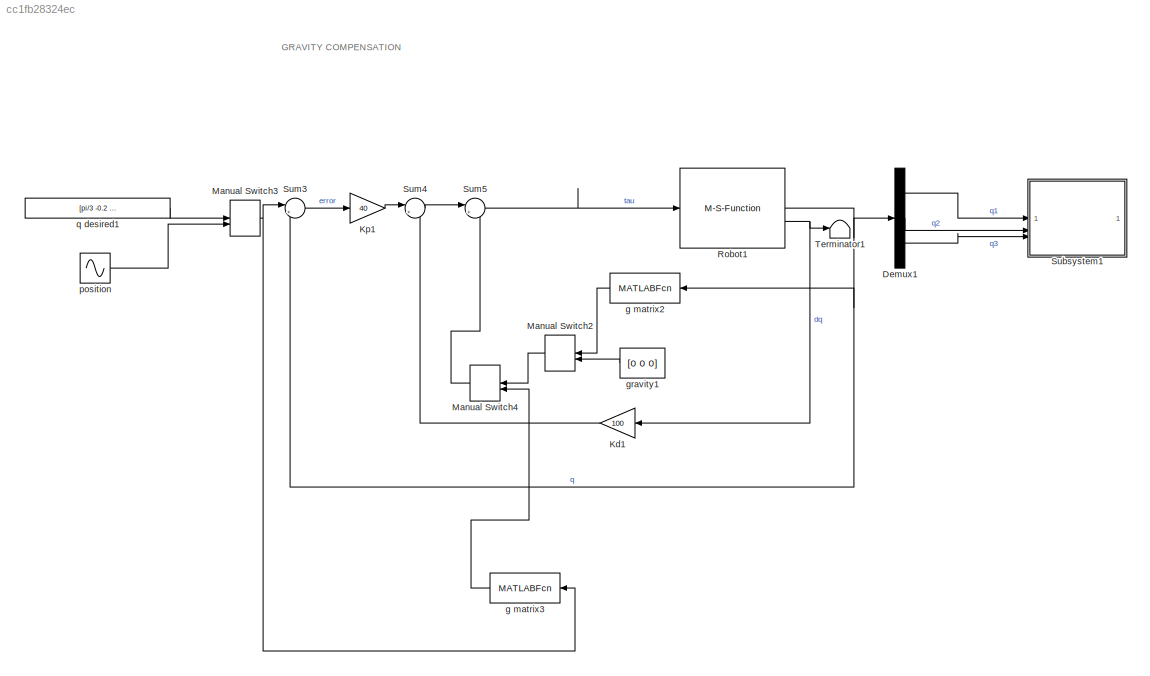
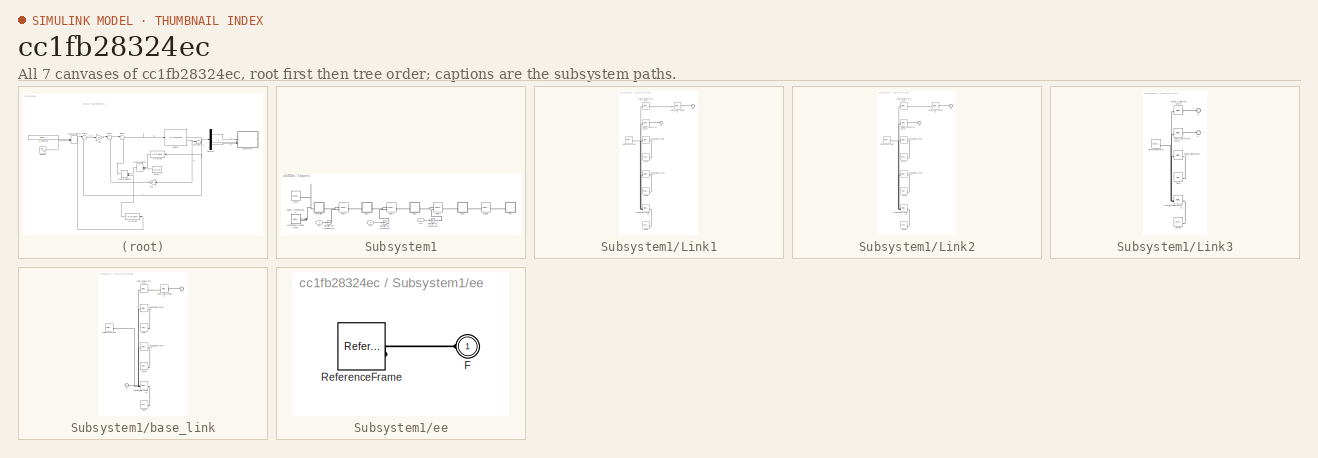
[diagram: thumbnail index - all 7 canvases of the model, root first then tree order]
MODEL slx_cc1fb28324ec
KIND model
CONFIG AbsTol = auto
CONFIG EnableMultiTasking = off
CONFIG FixedStep = Auto
CONFIG MaxStep = 1
CONFIG MinStep = auto
CONFIG RelTol = 1e-3
CONFIG SampleTimeConstraint = Unconstrained
CONFIG SolverName = VariableStepAuto
CONFIG StartTime = 0.0
CONFIG StopTime = 10
BLOCK [Demux] Demux1
  Outputs = 3
BLOCK [Gain] Kd1
  Gain = 100
BLOCK [Gain] Kp1
  Gain = 40
BLOCK [ManualSwitch] Manual Switch2
  NameLocation = top
BLOCK [ManualSwitch] Manual Switch3
BLOCK [ManualSwitch] Manual Switch4
  CurrentSetting = 0
  NameLocation = top
BLOCK [M-S-Function] Robot1
  FunctionName = robotDynamicsModel
  Parameters = robotStructure, [0 0 0], [0 0 0]
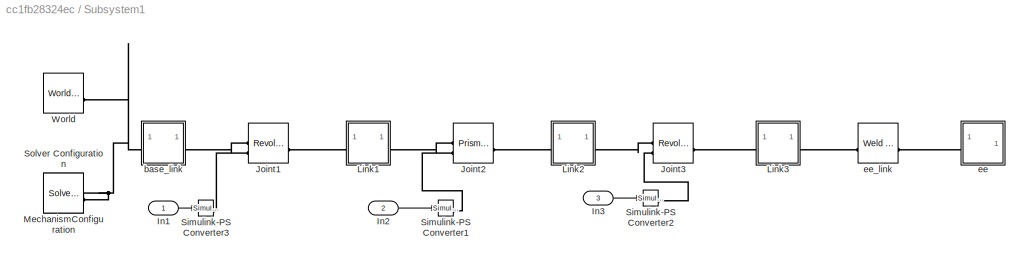
BLOCK [SubSystem] Subsystem1
BLOCK [Inport] Subsystem1/In1
BLOCK [Inport] Subsystem1/In2
  Port = 2
BLOCK [Inport] Subsystem1/In3
  Port = 3
BLOCK [Reference] Subsystem1/Joint1  REF=sm_lib/Joints/Revolute Joint
  SourceBlock = sm_lib/Joints/Revolute Joint
  SourceType = Revolute Joint
BLOCK [Reference] Subsystem1/Joint2  REF=sm_lib/Joints/Prismatic
Joint
  SourceBlock = sm_lib/Joints/Prismatic\nJoint
  SourceType = Prismatic\nJoint
BLOCK [Reference] Subsystem1/Joint3  REF=sm_lib/Joints/Revolute Joint
  SourceBlock = sm_lib/Joints/Revolute Joint
  SourceType = Revolute Joint
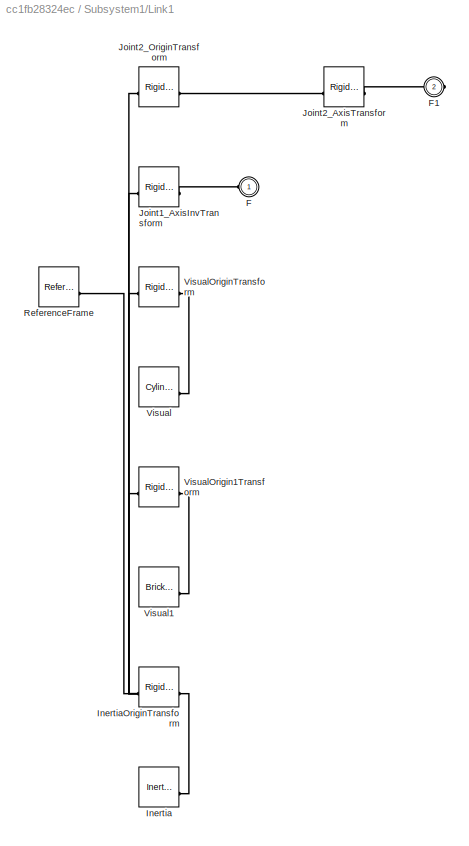
BLOCK [SubSystem] Subsystem1/Link1
BLOCK [PMIOPort] Subsystem1/Link1/F
  Side = Left
BLOCK [PMIOPort] Subsystem1/Link1/F1
  Port = 2
  Side = Right
BLOCK [Reference] Subsystem1/Link1/Inertia  REF=sm_lib/Body Elements/Inertia
  SourceBlock = sm_lib/Body Elements/Inertia
  SourceType = Inertia
BLOCK [Reference] Subsystem1/Link1/InertiaOriginTransform  REF=sm_lib/Frames and
Transforms/Rigid
Transform
  SourceBlock = sm_lib/Frames and\nTransforms/Rigid\nTransform
  SourceType = Rigid\nTransform
BLOCK [Reference] Subsystem1/Link1/Joint1_AxisInvTransform  REF=sm_lib/Frames and
Transforms/Rigid
Transform
  SourceBlock = sm_lib/Frames and\nTransforms/Rigid\nTransform
  SourceType = Rigid\nTransform
BLOCK [Reference] Subsystem1/Link1/Joint2_AxisTransform  REF=sm_lib/Frames and
Transforms/Rigid
Transform
  SourceBlock = sm_lib/Frames and\nTransforms/Rigid\nTransform
  SourceType = Rigid\nTransform
BLOCK [Reference] Subsystem1/Link1/Joint2_OriginTransform  REF=sm_lib/Frames and
Transforms/Rigid
Transform
  SourceBlock = sm_lib/Frames and\nTransforms/Rigid\nTransform
  SourceType = Rigid\nTransform
BLOCK [Reference] Subsystem1/Link1/ReferenceFrame  REF=sm_lib/Frames and
Transforms/Reference
Frame
  SourceBlock = sm_lib/Frames and\nTransforms/Reference\nFrame
  SourceType = Reference\nFrame
BLOCK [Reference] Subsystem1/Link1/Visual  REF=sm_lib/Body Elements/Cylindrical Solid
  SourceBlock = sm_lib/Body Elements/Cylindrical Solid
  SourceType = Cylindrical Solid
BLOCK [Reference] Subsystem1/Link1/Visual1  REF=sm_lib/Body Elements/Brick Solid
  SourceBlock = sm_lib/Body Elements/Brick Solid
  SourceType = Brick Solid
BLOCK [Reference] Subsystem1/Link1/VisualOrigin1Transform  REF=sm_lib/Frames and
Transforms/Rigid
Transform
  SourceBlock = sm_lib/Frames and\nTransforms/Rigid\nTransform
  SourceType = Rigid\nTransform
BLOCK [Reference] Subsystem1/Link1/VisualOriginTransform  REF=sm_lib/Frames and
Transforms/Rigid
Transform
  SourceBlock = sm_lib/Frames and\nTransforms/Rigid\nTransform
  SourceType = Rigid\nTransform
BLOCK [SubSystem] Subsystem1/Link2
BLOCK [PMIOPort] Subsystem1/Link2/F
  Side = Left
BLOCK [PMIOPort] Subsystem1/Link2/F1
  Port = 2
  Side = Right
BLOCK [Reference] Subsystem1/Link2/Inertia  REF=sm_lib/Body Elements/Inertia
  SourceBlock = sm_lib/Body Elements/Inertia
  SourceType = Inertia
BLOCK [Reference] Subsystem1/Link2/InertiaOriginTransform  REF=sm_lib/Frames and
Transforms/Rigid
Transform
  SourceBlock = sm_lib/Frames and\nTransforms/Rigid\nTransform
  SourceType = Rigid\nTransform
BLOCK [Reference] Subsystem1/Link2/Joint2_AxisInvTransform  REF=sm_lib/Frames and
Transforms/Rigid
Transform
  SourceBlock = sm_lib/Frames and\nTransforms/Rigid\nTransform
  SourceType = Rigid\nTransform
BLOCK [Reference] Subsystem1/Link2/Joint3_AxisTransform  REF=sm_lib/Frames and
Transforms/Rigid
Transform
  SourceBlock = sm_lib/Frames and\nTransforms/Rigid\nTransform
  SourceType = Rigid\nTransform
BLOCK [Reference] Subsystem1/Link2/Joint3_OriginTransform  REF=sm_lib/Frames and
Transforms/Rigid
Transform
  SourceBlock = sm_lib/Frames and\nTransforms/Rigid\nTransform
  SourceType = Rigid\nTransform
BLOCK [Reference] Subsystem1/Link2/ReferenceFrame  REF=sm_lib/Frames and
Transforms/Reference
Frame
  SourceBlock = sm_lib/Frames and\nTransforms/Reference\nFrame
  SourceType = Reference\nFrame
BLOCK [Reference] Subsystem1/Link2/Visual  REF=sm_lib/Body Elements/Brick Solid
  SourceBlock = sm_lib/Body Elements/Brick Solid
  SourceType = Brick Solid
BLOCK [Reference] Subsystem1/Link2/Visual1  REF=sm_lib/Body Elements/Cylindrical Solid
  SourceBlock = sm_lib/Body Elements/Cylindrical Solid
  SourceType = Cylindrical Solid
BLOCK [Reference] Subsystem1/Link2/VisualOrigin1Transform  REF=sm_lib/Frames and
Transforms/Rigid
Transform
  SourceBlock = sm_lib/Frames and\nTransforms/Rigid\nTransform
  SourceType = Rigid\nTransform
BLOCK [Reference] Subsystem1/Link2/VisualOriginTransform  REF=sm_lib/Frames and
Transforms/Rigid
Transform
  SourceBlock = sm_lib/Frames and\nTransforms/Rigid\nTransform
  SourceType = Rigid\nTransform
BLOCK [SubSystem] Subsystem1/Link3
BLOCK [PMIOPort] Subsystem1/Link3/F
  Side = Left
BLOCK [PMIOPort] Subsystem1/Link3/F1
  Port = 2
  Side = Right
BLOCK [Reference] Subsystem1/Link3/Inertia  REF=sm_lib/Body Elements/Inertia
  SourceBlock = sm_lib/Body Elements/Inertia
  SourceType = Inertia
BLOCK [Reference] Subsystem1/Link3/InertiaOriginTransform  REF=sm_lib/Frames and
Transforms/Rigid
Transform
  SourceBlock = sm_lib/Frames and\nTransforms/Rigid\nTransform
  SourceType = Rigid\nTransform
BLOCK [Reference] Subsystem1/Link3/Joint3_AxisInvTransform  REF=sm_lib/Frames and
Transforms/Rigid
Transform
  SourceBlock = sm_lib/Frames and\nTransforms/Rigid\nTransform
  SourceType = Rigid\nTransform
BLOCK [Reference] Subsystem1/Link3/ReferenceFrame  REF=sm_lib/Frames and
Transforms/Reference
Frame
  SourceBlock = sm_lib/Frames and\nTransforms/Reference\nFrame
  SourceType = Reference\nFrame
BLOCK [Reference] Subsystem1/Link3/Visual  REF=sm_lib/Body Elements/Cylindrical Solid
  SourceBlock = sm_lib/Body Elements/Cylindrical Solid
  SourceType = Cylindrical Solid
BLOCK [Reference] Subsystem1/Link3/VisualOriginTransform  REF=sm_lib/Frames and
Transforms/Rigid
Transform
  SourceBlock = sm_lib/Frames and\nTransforms/Rigid\nTransform
  SourceType = Rigid\nTransform
BLOCK [Reference] Subsystem1/Link3/ee_link_OriginTransform  REF=sm_lib/Frames and
Transforms/Rigid
Transform
  SourceBlock = sm_lib/Frames and\nTransforms/Rigid\nTransform
  SourceType = Rigid\nTransform
BLOCK [Reference] Subsystem1/MechanismConfiguration  REF=sm_lib/Utilities/Mechanism
Configuration
  SourceBlock = sm_lib/Utilities/Mechanism\nConfiguration
  SourceType = Mechanism\nConfiguration
BLOCK [Reference] Subsystem1/Simulink-PS Converter1  REF=nesl_utility/Simulink-PS
Converter
  SourceBlock = nesl_utility/Simulink-PS\nConverter
  SourceType = Simulink-PS\nConverter
BLOCK [Reference] Subsystem1/Simulink-PS Converter2  REF=nesl_utility/Simulink-PS
Converter
  SourceBlock = nesl_utility/Simulink-PS\nConverter
  SourceType = Simulink-PS\nConverter
BLOCK [Reference] Subsystem1/Simulink-PS Converter3  REF=nesl_utility/Simulink-PS
Converter
  SourceBlock = nesl_utility/Simulink-PS\nConverter
  SourceType = Simulink-PS\nConverter
BLOCK [Reference] Subsystem1/Solver Configuration  REF=nesl_utility/Solver
Configuration
  SourceBlock = nesl_utility/Solver\nConfiguration
  SourceType = Solver\nConfiguration
BLOCK [Reference] Subsystem1/World  REF=sm_lib/Frames and
Transforms/World Frame
  SourceBlock = sm_lib/Frames and\nTransforms/World Frame
  SourceType = World Frame
BLOCK [SubSystem] Subsystem1/base_link
BLOCK [PMIOPort] Subsystem1/base_link/F
  Side = Left
BLOCK [PMIOPort] Subsystem1/base_link/F1
  Port = 2
  Side = Right
BLOCK [Reference] Subsystem1/base_link/Inertia  REF=sm_lib/Body Elements/Inertia
  SourceBlock = sm_lib/Body Elements/Inertia
  SourceType = Inertia
BLOCK [Reference] Subsystem1/base_link/InertiaOriginTransform  REF=sm_lib/Frames and
Transforms/Rigid
Transform
  SourceBlock = sm_lib/Frames and\nTransforms/Rigid\nTransform
  SourceType = Rigid\nTransform
BLOCK [Reference] Subsystem1/base_link/Joint1_AxisTransform  REF=sm_lib/Frames and
Transforms/Rigid
Transform
  SourceBlock = sm_lib/Frames and\nTransforms/Rigid\nTransform
  SourceType = Rigid\nTransform
BLOCK [Reference] Subsystem1/base_link/Joint1_OriginTransform  REF=sm_lib/Frames and
Transforms/Rigid
Transform
  SourceBlock = sm_lib/Frames and\nTransforms/Rigid\nTransform
  SourceType = Rigid\nTransform
BLOCK [Reference] Subsystem1/base_link/ReferenceFrame  REF=sm_lib/Frames and
Transforms/Reference
Frame
  SourceBlock = sm_lib/Frames and\nTransforms/Reference\nFrame
  SourceType = Reference\nFrame
BLOCK [Reference] Subsystem1/base_link/Visual  REF=sm_lib/Body Elements/Cylindrical Solid
  SourceBlock = sm_lib/Body Elements/Cylindrical Solid
  SourceType = Cylindrical Solid
BLOCK [Reference] Subsystem1/base_link/Visual1  REF=sm_lib/Body Elements/Cylindrical Solid
  SourceBlock = sm_lib/Body Elements/Cylindrical Solid
  SourceType = Cylindrical Solid
BLOCK [Reference] Subsystem1/base_link/VisualOrigin1Transform  REF=sm_lib/Frames and
Transforms/Rigid
Transform
  SourceBlock = sm_lib/Frames and\nTransforms/Rigid\nTransform
  SourceType = Rigid\nTransform
BLOCK [Reference] Subsystem1/base_link/VisualOriginTransform  REF=sm_lib/Frames and
Transforms/Rigid
Transform
  SourceBlock = sm_lib/Frames and\nTransforms/Rigid\nTransform
  SourceType = Rigid\nTransform
BLOCK [SubSystem] Subsystem1/ee
BLOCK [PMIOPort] Subsystem1/ee/F
  Side = Left
BLOCK [Reference] Subsystem1/ee/ReferenceFrame  REF=sm_lib/Frames and
Transforms/Reference
Frame
  SourceBlock = sm_lib/Frames and\nTransforms/Reference\nFrame
  SourceType = Reference\nFrame
BLOCK [Reference] Subsystem1/ee_link  REF=sm_lib/Joints/Weld Joint
  SourceBlock = sm_lib/Joints/Weld Joint
  SourceType = Weld Joint
BLOCK [Sum] Sum3
  Inputs = |+-
BLOCK [Sum] Sum4
  Inputs = |+-
BLOCK [Sum] Sum5
  Inputs = |++
BLOCK [Terminator] Terminator1
BLOCK [MATLABFcn] g matrix2
  MATLABFcn = robotStructure.func.Gmatrix(u(1), u(2), u(3))
  OutputDimensions = 3
  OutputSignalType = real
BLOCK [MATLABFcn] g matrix3
  MATLABFcn = robotStructure.func.Gmatrix(u(1), u(2), u(3))
  OutputDimensions = 3
  OutputSignalType = real
BLOCK [Constant] gravity1
  NameLocation = top
  Value = [0 0 0]
BLOCK [Sin] position
  Amplitude = 0.2
  SampleTime = 0
BLOCK [Constant] q desired1
  Value = [pi/3 -0.2 pi/6]
ANNOTATION (root): GRAVITY COMPENSATION
LINE Demux1:1 -> Subsystem1:1
LINE Demux1:2 -> Subsystem1:2
LINE Demux1:3 -> Subsystem1:3
LINE Kd1:1 -> Sum4:2
LINE Kp1:1 -> Sum4:1
LINE Manual Switch2:1 -> Manual Switch4:1
NET Manual Switch3:1 -> Sum3:1, g matrix3:1
LINE Manual Switch4:1 -> Sum5:2
NET Robot1:1 -> Demux1:1, Sum3:2, g matrix2:1
NET Robot1:2 -> Kd1:1, Terminator1:1
LINE Subsystem1/In1:1 -> Subsystem1/Simulink-PS Converter3:1
LINE Subsystem1/In2:1 -> Subsystem1/Simulink-PS Converter1:1
LINE Subsystem1/In3:1 -> Subsystem1/Simulink-PS Converter2:1
LINE Sum3:1 -> Kp1:1
LINE Sum4:1 -> Sum5:1
LINE Sum5:1 -> Robot1:1
LINE g matrix2:1 -> Manual Switch2:1
LINE g matrix3:1 -> Manual Switch4:2
LINE gravity1:1 -> Manual Switch2:2
LINE position:1 -> Manual Switch3:2
LINE q desired1:1 -> Manual Switch3:1
PLINE Subsystem1/Joint1:LConn1 -- Subsystem1/base_link:RConn1
PLINE Subsystem1/Joint1:LConn2 -- Subsystem1/Simulink-PS Converter3:RConn1
PLINE Subsystem1/Joint1:RConn1 -- Subsystem1/Link1:LConn1
PLINE Subsystem1/Joint2:LConn1 -- Subsystem1/Link1:RConn1
PLINE Subsystem1/Joint2:LConn2 -- Subsystem1/Simulink-PS Converter1:RConn1
PLINE Subsystem1/Joint2:RConn1 -- Subsystem1/Link2:LConn1
PLINE Subsystem1/Joint3:LConn1 -- Subsystem1/Link2:RConn1
PLINE Subsystem1/Joint3:LConn2 -- Subsystem1/Simulink-PS Converter2:RConn1
PLINE Subsystem1/Joint3:RConn1 -- Subsystem1/Link3:LConn1
PLINE Subsystem1/Link1/F1:RConn1 -- Subsystem1/Link1/Joint2_AxisTransform:RConn1
PLINE Subsystem1/Link1/F:RConn1 -- Subsystem1/Link1/Joint1_AxisInvTransform:RConn1
PLINE Subsystem1/Link1/Inertia:RConn1 -- Subsystem1/Link1/InertiaOriginTransform:RConn1
PNET net1: Subsystem1/Link1/InertiaOriginTransform:LConn1 -- Subsystem1/Link1/Joint1_AxisInvTransform:LConn1 -- Subsystem1/Link1/Joint2_OriginTransform:LConn1 -- Subsystem1/Link1/ReferenceFrame:RConn1 -- Subsystem1/Link1/VisualOrigin1Transform:LConn1 -- Subsystem1/Link1/VisualOriginTransform:LConn1
PLINE Subsystem1/Link1/Joint2_AxisTransform:LConn1 -- Subsystem1/Link1/Joint2_OriginTransform:RConn1
PLINE Subsystem1/Link1/Visual1:RConn1 -- Subsystem1/Link1/VisualOrigin1Transform:RConn1
PLINE Subsystem1/Link1/Visual:RConn1 -- Subsystem1/Link1/VisualOriginTransform:RConn1
PLINE Subsystem1/Link2/F1:RConn1 -- Subsystem1/Link2/Joint3_AxisTransform:RConn1
PLINE Subsystem1/Link2/F:RConn1 -- Subsystem1/Link2/Joint2_AxisInvTransform:RConn1
PLINE Subsystem1/Link2/Inertia:RConn1 -- Subsystem1/Link2/InertiaOriginTransform:RConn1
PNET net2: Subsystem1/Link2/InertiaOriginTransform:LConn1 -- Subsystem1/Link2/Joint2_AxisInvTransform:LConn1 -- Subsystem1/Link2/Joint3_OriginTransform:LConn1 -- Subsystem1/Link2/ReferenceFrame:RConn1 -- Subsystem1/Link2/VisualOrigin1Transform:LConn1 -- Subsystem1/Link2/VisualOriginTransform:LConn1
PLINE Subsystem1/Link2/Joint3_AxisTransform:LConn1 -- Subsystem1/Link2/Joint3_OriginTransform:RConn1
PLINE Subsystem1/Link2/Visual1:RConn1 -- Subsystem1/Link2/VisualOrigin1Transform:RConn1
PLINE Subsystem1/Link2/Visual:RConn1 -- Subsystem1/Link2/VisualOriginTransform:RConn1
PLINE Subsystem1/Link3/F1:RConn1 -- Subsystem1/Link3/ee_link_OriginTransform:RConn1
PLINE Subsystem1/Link3/F:RConn1 -- Subsystem1/Link3/Joint3_AxisInvTransform:RConn1
PLINE Subsystem1/Link3/Inertia:RConn1 -- Subsystem1/Link3/InertiaOriginTransform:RConn1
PNET net3: Subsystem1/Link3/InertiaOriginTransform:LConn1 -- Subsystem1/Link3/Joint3_AxisInvTransform:LConn1 -- Subsystem1/Link3/ReferenceFrame:RConn1 -- Subsystem1/Link3/VisualOriginTransform:LConn1 -- Subsystem1/Link3/ee_link_OriginTransform:LConn1
PLINE Subsystem1/Link3/Visual:RConn1 -- Subsystem1/Link3/VisualOriginTransform:RConn1
PLINE Subsystem1/Link3:RConn1 -- Subsystem1/ee_link:LConn1
PNET net4: Subsystem1/MechanismConfiguration:RConn1 -- Subsystem1/Solver Configuration:RConn1 -- Subsystem1/World:RConn1 -- Subsystem1/base_link:LConn1
PLINE Subsystem1/base_link/F1:RConn1 -- Subsystem1/base_link/Joint1_AxisTransform:RConn1
PNET net5: Subsystem1/base_link/F:RConn1 -- Subsystem1/base_link/InertiaOriginTransform:LConn1 -- Subsystem1/base_link/Joint1_OriginTransform:LConn1 -- Subsystem1/base_link/ReferenceFrame:RConn1 -- Subsystem1/base_link/VisualOrigin1Transform:LConn1 -- Subsystem1/base_link/VisualOriginTransform:LConn1
PLINE Subsystem1/base_link/Inertia:RConn1 -- Subsystem1/base_link/InertiaOriginTransform:RConn1
PLINE Subsystem1/base_link/Joint1_AxisTransform:LConn1 -- Subsystem1/base_link/Joint1_OriginTransform:RConn1
PLINE Subsystem1/base_link/Visual1:RConn1 -- Subsystem1/base_link/VisualOrigin1Transform:RConn1
PLINE Subsystem1/base_link/Visual:RConn1 -- Subsystem1/base_link/VisualOriginTransform:RConn1
PLINE Subsystem1/ee/F:RConn1 -- Subsystem1/ee/ReferenceFrame:RConn1
PLINE Subsystem1/ee:LConn1 -- Subsystem1/ee_link:RConn1
note: NET lines group one-source signal fan-out (src -> all destinations, sorted); 1:1 wires keep LINE; PNET lines group multi-terminal physical nets as a canonical sorted terminal list (undirected conserving connections); 2-terminal nets keep the pairwise PLINE form
